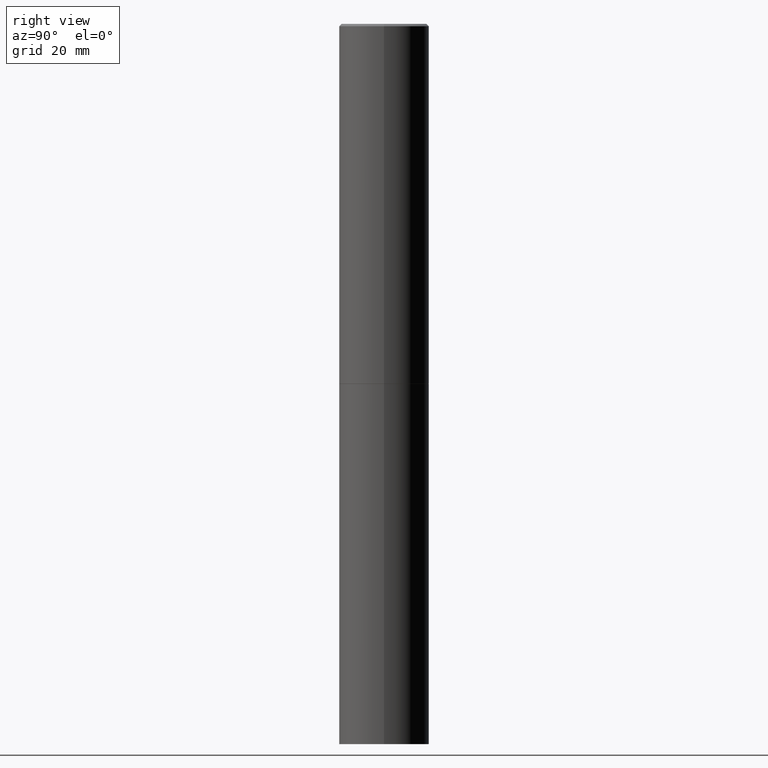
[diagram: clean part render]
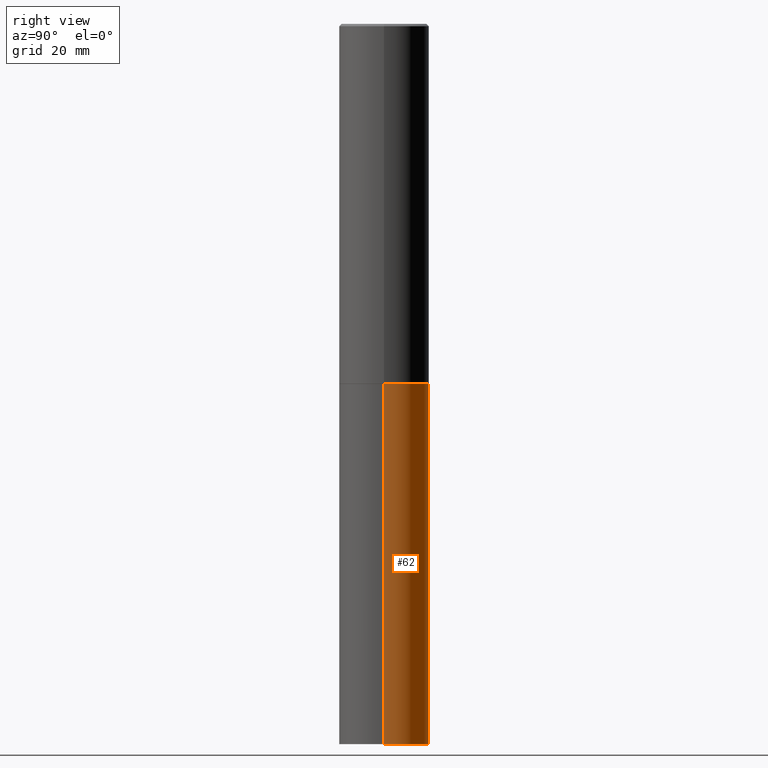
[diagram: same view with one face highlighted and labeled with its STEP entity id]
A machine part, right view. The second image highlights one B-rep face of the part: STEP entity #62.
In plain terms, the highlighted cylindrical surface (partial cylindrical patch) has radius 9.525 mm, axis along (-0, 0, 1).
Its self-contained STEP definition (entity closure, byte-faithful):
#7 = VERTEX_POINT ( 'NONE', #70 ) ;
#9 = DIRECTION ( 'NONE',  ( -2.445468806185136597E-29, 3.491481338843145583E-15, 1.000000000000000000 ) ) ;
#13 = CARTESIAN_POINT ( 'NONE',  ( 7.336406418555409790E-29, -1.047444401652943635E-14, -3.000000000000000444 ) ) ;
#19 = EDGE_CURVE ( 'NONE', #366, #30, #25, .T. ) ;
#20 = CARTESIAN_POINT ( 'NONE',  ( 0.3750000000000000555, -2.356749903719122272E-14, -6.000000000000000888 ) ) ;
#25 = CIRCLE ( 'NONE', #60, 0.3750000000000000555 ) ;
#30 = VERTEX_POINT ( 'NONE', #39 ) ;
#39 = CARTESIAN_POINT ( 'NONE',  ( -0.3750000000000000555, -1.304713076569377962E-14, -6.000000000000000888 ) ) ;
#60 = AXIS2_PLACEMENT_3D ( 'NONE', #332, #204, #66 ) ;
#62 = ADVANCED_FACE ( 'NONE', ( #299 ), #236, .T. ) ;
#66 = DIRECTION ( 'NONE',  ( 1.000000000000000000, -6.982962677686261189E-15, 0.000000000000000000 ) ) ;
#70 = CARTESIAN_POINT ( 'NONE',  ( -0.3750000000000000555, -1.304713076569377962E-14, -3.000000000000000444 ) ) ;
#76 = LINE ( 'NONE', #104, #356 ) ;
#80 = EDGE_CURVE ( 'NONE', #317, #7, #225, .T. ) ;
#95 = EDGE_LOOP ( 'NONE', ( #239, #114, #177, #254 ) ) ;
#99 = CARTESIAN_POINT ( 'NONE',  ( 0.3750000000000000555, -2.618611004132350016E-15, 1.828566290923476203E-29 ) ) ;
#104 = CARTESIAN_POINT ( 'NONE',  ( -0.3750000000000000555, 2.664535259100376091E-15, -1.844600658845589598E-29 ) ) ;
#114 = ORIENTED_EDGE ( 'NONE', *, *, #193, .T. ) ;
#115 = AXIS2_PLACEMENT_3D ( 'NONE', #268, #354, #233 ) ;
#116 = VECTOR ( 'NONE', #348, 39.37007874015748143 ) ;
#119 = EDGE_CURVE ( 'NONE', #366, #317, #127, .T. ) ;
#123 = DIRECTION ( 'NONE',  ( 1.000000000000000000, -6.982962677686266711E-15, 0.000000000000000000 ) ) ;
#127 = LINE ( 'NONE', #99, #116 ) ;
#177 = ORIENTED_EDGE ( 'NONE', *, *, #80, .F. ) ;
#193 = EDGE_CURVE ( 'NONE', #30, #7, #76, .T. ) ;
#204 = DIRECTION ( 'NONE',  ( -2.445468806185136597E-29, 3.491481338843145583E-15, 1.000000000000000000 ) ) ;
#210 = DIRECTION ( 'NONE',  ( -2.445468806185136877E-29, 3.491481338843145188E-15, 1.000000000000000000 ) ) ;
#225 = CIRCLE ( 'NONE', #325, 0.3750000000000000555 ) ;
#233 = DIRECTION ( 'NONE',  ( 1.000000000000000000, -6.982962677686265922E-15, 4.876176775795935793E-29 ) ) ;
#236 = CYLINDRICAL_SURFACE ( 'NONE', #115, 0.3750000000000000555 ) ;
#239 = ORIENTED_EDGE ( 'NONE', *, *, #19, .T. ) ;
#242 = CARTESIAN_POINT ( 'NONE',  ( 0.3750000000000000555, -1.309305502066178795E-14, -3.000000000000000444 ) ) ;
#254 = ORIENTED_EDGE ( 'NONE', *, *, #119, .F. ) ;
#268 = CARTESIAN_POINT ( 'NONE',  ( 0.000000000000000000, 0.000000000000000000, 0.000000000000000000 ) ) ;
#299 = FACE_OUTER_BOUND ( 'NONE', #95, .T. ) ;
#317 = VERTEX_POINT ( 'NONE', #242 ) ;
#325 = AXIS2_PLACEMENT_3D ( 'NONE', #13, #9, #123 ) ;
#332 = CARTESIAN_POINT ( 'NONE',  ( 1.467281283711081958E-28, -2.094888803305887271E-14, -6.000000000000000888 ) ) ;
#348 = DIRECTION ( 'NONE',  ( -2.445468806185136877E-29, 3.491481338843145188E-15, 1.000000000000000000 ) ) ;
#354 = DIRECTION ( 'NONE',  ( -2.445468806185136597E-29, 3.491481338843145583E-15, 1.000000000000000000 ) ) ;
#356 = VECTOR ( 'NONE', #210, 39.37007874015748143 ) ;
#366 = VERTEX_POINT ( 'NONE', #20 ) ;